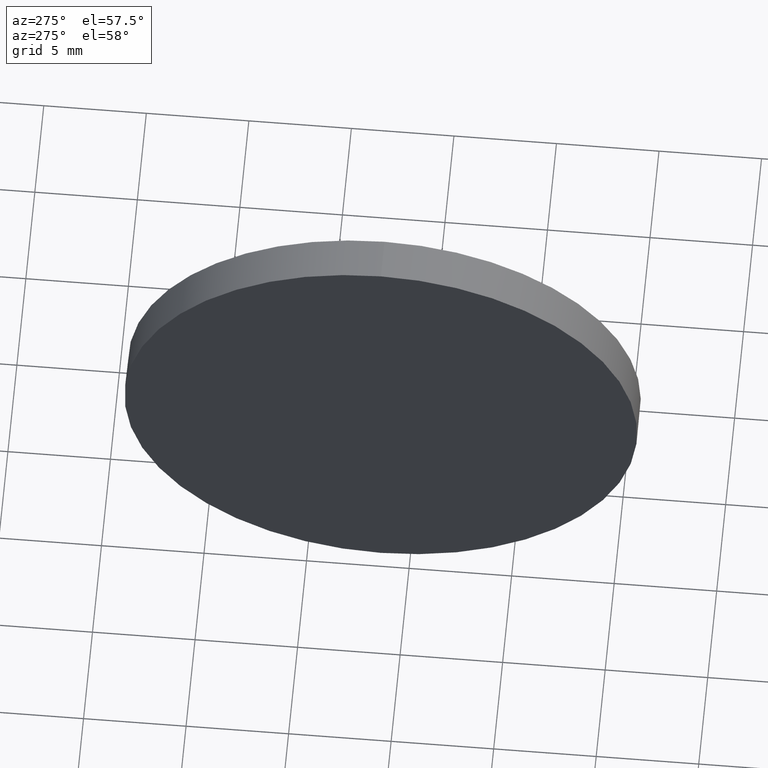
[diagram: clean part render]
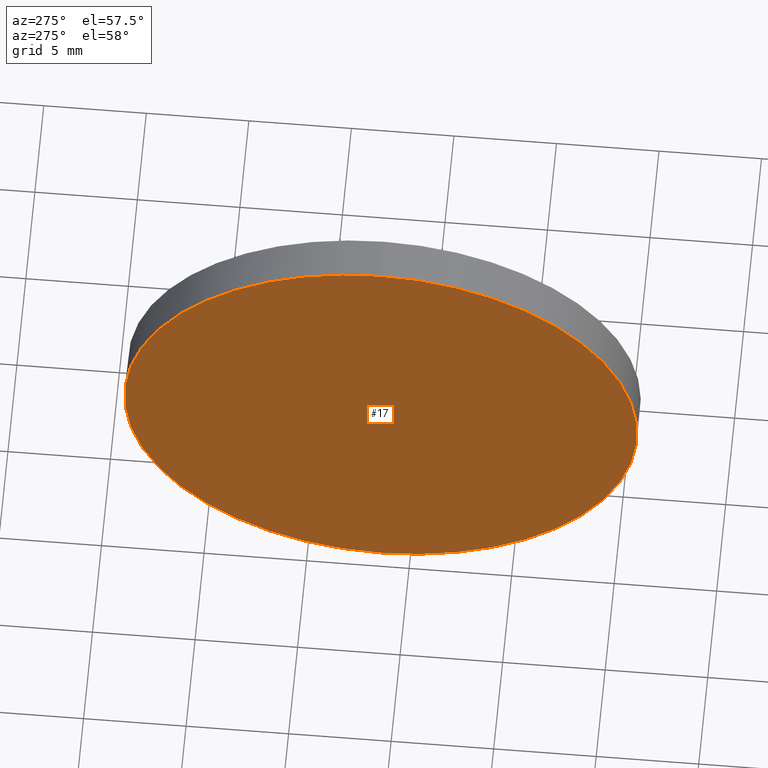
[diagram: same view with one face highlighted and labeled with its STEP entity id]
A machine part, auxiliary view. The second image highlights one B-rep face of the part: STEP entity #17.
In plain terms, the highlighted planar face has unit normal (1, 0, 0).
Its self-contained STEP definition (entity closure, byte-faithful):
#4 = ORIENTED_EDGE ( 'NONE', *, *, #120, .T. ) ;
#17 = ADVANCED_FACE ( 'NONE', ( #130 ), #132, .F. ) ;
#20 = CIRCLE ( 'NONE', #64, 12.50000000000000400 ) ;
#23 = AXIS2_PLACEMENT_3D ( 'NONE', #122, #67, #159 ) ;
#46 = DIRECTION ( 'NONE',  ( -1.000000000000000000, -0.0000000000000000000, -0.0000000000000000000 ) ) ;
#52 = CARTESIAN_POINT ( 'NONE',  ( 410.4307510212638000, 36.41570885204544100, 12.50000000000000400 ) ) ;
#53 = EDGE_CURVE ( 'NONE', #143, #102, #96, .T. ) ;
#55 = EDGE_LOOP ( 'NONE', ( #4, #144 ) ) ;
#64 = AXIS2_PLACEMENT_3D ( 'NONE', #131, #46, #164 ) ;
#65 = AXIS2_PLACEMENT_3D ( 'NONE', #71, #162, #83 ) ;
#67 = DIRECTION ( 'NONE',  ( 1.000000000000000000, 0.0000000000000000000, 0.0000000000000000000 ) ) ;
#71 = CARTESIAN_POINT ( 'NONE',  ( 410.4307510212638000, 36.41570885204544100, 0.0000000000000000000 ) ) ;
#83 = DIRECTION ( 'NONE',  ( 0.0000000000000000000, 0.0000000000000000000, 1.000000000000000000 ) ) ;
#96 = CIRCLE ( 'NONE', #65, 12.50000000000000400 ) ;
#102 = VERTEX_POINT ( 'NONE', #52 ) ;
#120 = EDGE_CURVE ( 'NONE', #102, #143, #20, .T. ) ;
#122 = CARTESIAN_POINT ( 'NONE',  ( 410.4307510212638000, 36.41570885204543400, 0.0000000000000000000 ) ) ;
#130 = FACE_OUTER_BOUND ( 'NONE', #55, .T. ) ;
#131 = CARTESIAN_POINT ( 'NONE',  ( 410.4307510212638000, 36.41570885204544100, 0.0000000000000000000 ) ) ;
#132 = PLANE ( 'NONE',  #23 ) ;
#143 = VERTEX_POINT ( 'NONE', #163 ) ;
#144 = ORIENTED_EDGE ( 'NONE', *, *, #53, .T. ) ;
#159 = DIRECTION ( 'NONE',  ( 0.0000000000000000000, 0.0000000000000000000, -1.000000000000000000 ) ) ;
#162 = DIRECTION ( 'NONE',  ( -1.000000000000000000, -0.0000000000000000000, -0.0000000000000000000 ) ) ;
#163 = CARTESIAN_POINT ( 'NONE',  ( 410.4307510212638000, 36.41570885204544100, -12.50000000000000400 ) ) ;
#164 = DIRECTION ( 'NONE',  ( 0.0000000000000000000, 0.0000000000000000000, 1.000000000000000000 ) ) ;